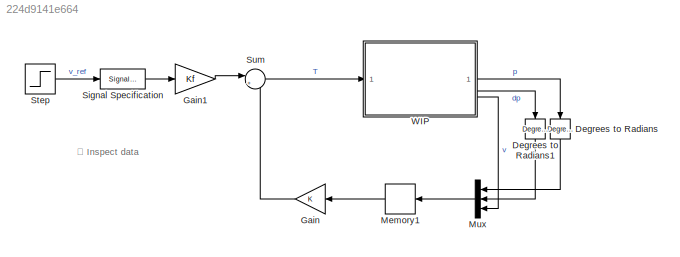
MODEL slx_224d9141e664
KIND model
CONFIG AbsTol = 1e-3
CONFIG EnableMultiTasking = off
CONFIG FixedStep = auto
CONFIG MaxStep = 1e-3
CONFIG MinStep = auto
CONFIG RelTol = 1e-3
CONFIG SampleTimeConstraint = Unconstrained
CONFIG SolverName = ode23t
CONFIG StartTime = 0.0
CONFIG StopTime = 10.0
BLOCK [Reference] Degrees to Radians  REF=simulink_extras/Transformations/Degrees to
Radians
  NameLocation = left
  SourceBlock = simulink_extras/Transformations/Degrees to\nRadians
  SourceType = DegreesToRadians
BLOCK [Reference] Degrees to Radians1  REF=simulink_extras/Transformations/Degrees to
Radians
  NameLocation = left
  SourceBlock = simulink_extras/Transformations/Degrees to\nRadians
  SourceType = DegreesToRadians
BLOCK [Gain] Gain
  Gain = K
  Multiplication = Matrix(K*u)
BLOCK [Gain] Gain1
  Gain = Kf
BLOCK [Memory] Memory1
  InheritSampleTime = on
  InitialCondition = [p0*pi/180 0 0]
  LinearizeAsDelay = on
  LinearizeMemory = on
BLOCK [Mux] Mux
  DisplayOption = bar
  Inputs = 3
BLOCK [SignalSpecification] Signal Specification
  Unit = m/s
BLOCK [Step] Step
  SampleTime = 0
BLOCK [Sum] Sum
  Inputs = |+-
BLOCK [SubSystem] WIP
  ReferencedSubsystem = WIP
ANNOTATION (root): 📈 Inspect data
LINE Degrees to Radians1:1 -> Mux:2
LINE Degrees to Radians:1 -> Mux:1
LINE Gain1:1 -> Sum:1
LINE Gain:1 -> Sum:2
LINE Memory1:1 -> Gain:1
LINE Mux:1 -> Memory1:1
LINE Signal Specification:1 -> Gain1:1
LINE Step:1 -> Signal Specification:1
LINE Sum:1 -> WIP:1
LINE WIP:1 -> Degrees to Radians:1
LINE WIP:2 -> Degrees to Radians1:1
LINE WIP:3 -> Mux:3
